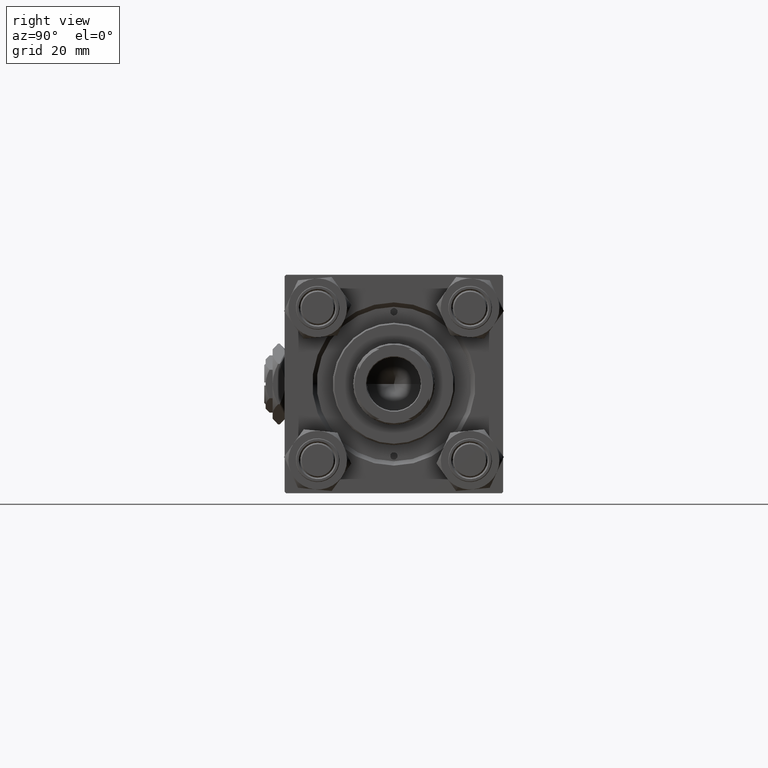
[diagram: clean part render]
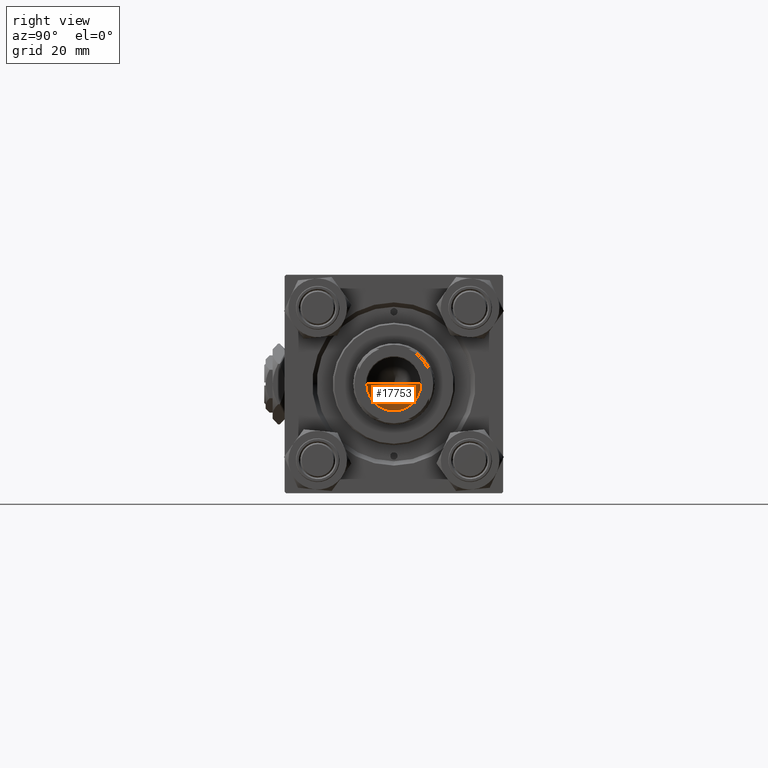
[diagram: same view with one face highlighted and labeled with its STEP entity id]
A machine part, right view. The second image highlights one B-rep face of the part: STEP entity #17753.
In plain terms, the highlighted conical surface has half-angle 59 deg.
Its self-contained STEP definition (entity closure, byte-faithful):
#271 = EDGE_LOOP ( 'NONE', ( #24880, #51225, #17182 ) ) ;
#1945 = LINE ( 'NONE', #10070, #19164 ) ;
#5084 = DIRECTION ( 'NONE',  ( -0.8571673007021117785, 1.049727191138617956E-16, 0.5150380749100550437 ) ) ;
#6530 = AXIS2_PLACEMENT_3D ( 'NONE', #30697, #34387, #27541 ) ;
#8211 = VERTEX_POINT ( 'NONE', #25424 ) ;
#9913 = CONICAL_SURFACE ( 'NONE', #6530, 9.249999999999992895, 1.029744258676653423 ) ;
#10070 = CARTESIAN_POINT ( 'NONE',  ( -9.249999999999992895, 1.132798289211300712E-15, 107.0000000000000142 ) ) ;
#17182 = ORIENTED_EDGE ( 'NONE', *, *, #38895, .T. ) ;
#17753 = ADVANCED_FACE ( 'NONE', ( #46162 ), #9913, .F. ) ;
#19164 = VECTOR ( 'NONE', #5084, 1000.000000000000000 ) ;
#19414 = DIRECTION ( 'NONE',  ( -0.000000000000000000, -0.000000000000000000, 1.000000000000000000 ) ) ;
#19940 = CARTESIAN_POINT ( 'NONE',  ( 9.249999999999992895, 0.000000000000000000, 107.0000000000000142 ) ) ;
#20424 = VERTEX_POINT ( 'NONE', #35819 ) ;
#21181 = VERTEX_POINT ( 'NONE', #51640 ) ;
#21880 = VECTOR ( 'NONE', #35925, 1000.000000000000000 ) ;
#22241 = CIRCLE ( 'NONE', #49852, 9.249999999999992895 ) ;
#24880 = ORIENTED_EDGE ( 'NONE', *, *, #47007, .F. ) ;
#25424 = CARTESIAN_POINT ( 'NONE',  ( -9.769621978240258809E-15, 0.000000000000000000, 101.4420392739950785 ) ) ;
#27541 = DIRECTION ( 'NONE',  ( 1.000000000000000000, 0.000000000000000000, 0.000000000000000000 ) ) ;
#29631 = EDGE_CURVE ( 'NONE', #8211, #20424, #42062, .T. ) ;
#30697 = CARTESIAN_POINT ( 'NONE',  ( 0.000000000000000000, 0.000000000000000000, 107.0000000000000142 ) ) ;
#31441 = DIRECTION ( 'NONE',  ( 1.000000000000000000, 0.000000000000000000, 0.000000000000000000 ) ) ;
#34387 = DIRECTION ( 'NONE',  ( -0.000000000000000000, -0.000000000000000000, 1.000000000000000000 ) ) ;
#35819 = CARTESIAN_POINT ( 'NONE',  ( 9.249999999999992895, 0.000000000000000000, 107.0000000000000142 ) ) ;
#35925 = DIRECTION ( 'NONE',  ( 0.8571673007021117785, 0.000000000000000000, 0.5150380749100550437 ) ) ;
#38895 = EDGE_CURVE ( 'NONE', #20424, #21181, #22241, .T. ) ;
#42062 = LINE ( 'NONE', #19940, #21880 ) ;
#42480 = CARTESIAN_POINT ( 'NONE',  ( 0.000000000000000000, 0.000000000000000000, 107.0000000000000142 ) ) ;
#46162 = FACE_OUTER_BOUND ( 'NONE', #271, .T. ) ;
#47007 = EDGE_CURVE ( 'NONE', #8211, #21181, #1945, .T. ) ;
#49852 = AXIS2_PLACEMENT_3D ( 'NONE', #42480, #19414, #31441 ) ;
#51225 = ORIENTED_EDGE ( 'NONE', *, *, #29631, .T. ) ;
#51640 = CARTESIAN_POINT ( 'NONE',  ( -9.249999999999992895, 1.132798289211300712E-15, 107.0000000000000142 ) ) ;